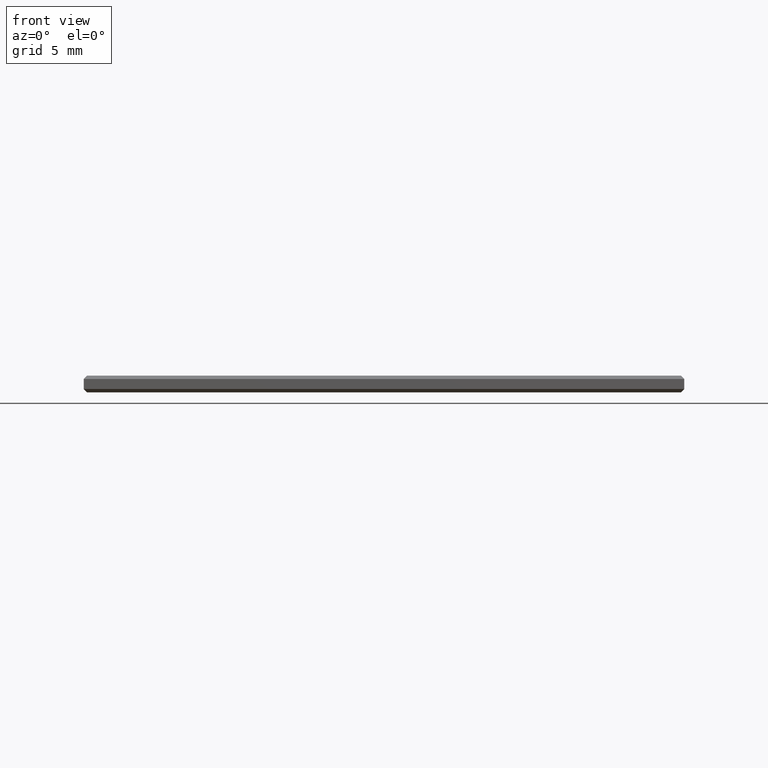
[diagram: clean part render]
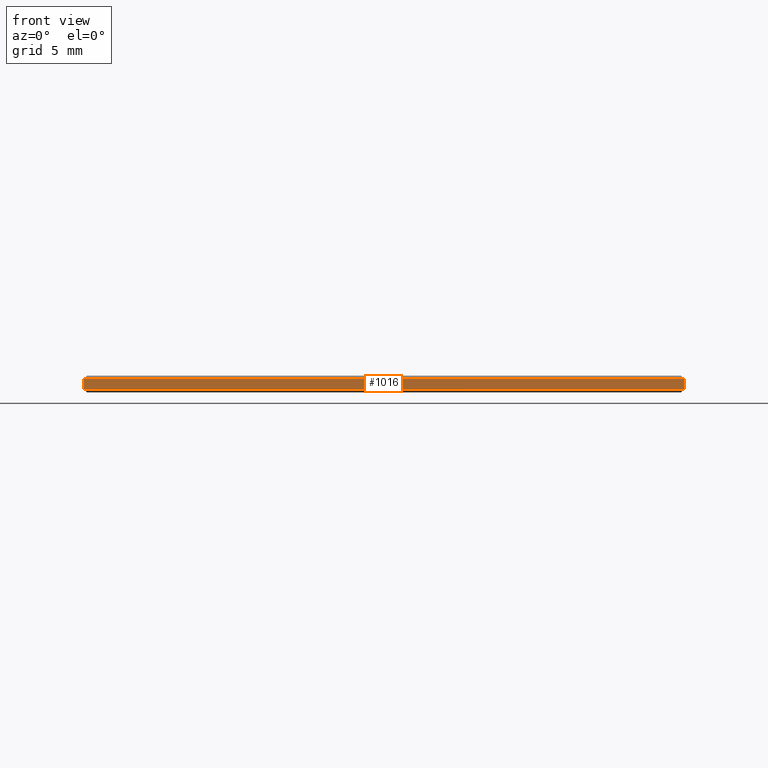
[diagram: same view with one face highlighted and labeled with its STEP entity id]
A machine part, front view. The second image highlights one B-rep face of the part: STEP entity #1016.
In plain terms, the highlighted planar face has unit normal (0, 1, 0).
Its self-contained STEP definition (entity closure, byte-faithful):
#1007 = VERTEX_POINT ( 'NONE', #3989 ) ;
#1010 = ORIENTED_EDGE ( 'NONE', *, *, #1046, .T. ) ;
#1013 = ORIENTED_EDGE ( 'NONE', *, *, #1017, .T. ) ;
#1015 = EDGE_CURVE ( 'NONE', #1034, #1022, #4008, .T. ) ;
#1016 = ADVANCED_FACE ( 'NONE', ( #4052 ), #4033, .F. ) ;
#1017 = EDGE_CURVE ( 'NONE', #1072, #1022, #4084, .T. ) ;
#1022 = VERTEX_POINT ( 'NONE', #4074 ) ;
#1034 = VERTEX_POINT ( 'NONE', #4066 ) ;
#1036 = ORIENTED_EDGE ( 'NONE', *, *, #1065, .T. ) ;
#1046 = EDGE_CURVE ( 'NONE', #1007, #1072, #4153, .T. ) ;
#1062 = ORIENTED_EDGE ( 'NONE', *, *, #1015, .F. ) ;
#1065 = EDGE_CURVE ( 'NONE', #1034, #1007, #4165, .T. ) ;
#1071 = EDGE_LOOP ( 'NONE', ( #1010, #1013, #1062, #1036 ) ) ;
#1072 = VERTEX_POINT ( 'NONE', #4159 ) ;
#3989 = CARTESIAN_POINT ( 'NONE',  ( -17.99999999999999600, -12.49999999999999800, 0.2999999999999942700 ) ) ;
#4008 = LINE ( 'NONE', #4036, #4035 ) ;
#4020 = CARTESIAN_POINT ( 'NONE',  ( -17.99999999999999600, -12.49999999999999800, 0.5000000000000000000 ) ) ;
#4033 = PLANE ( 'NONE',  #4054 ) ;
#4034 = DIRECTION ( 'NONE',  ( -0.0000000000000000000, -0.0000000000000000000, -1.000000000000000000 ) ) ;
#4035 = VECTOR ( 'NONE', #4034, 1000.000000000000000 ) ;
#4036 = CARTESIAN_POINT ( 'NONE',  ( 18.00000000000000400, -12.49999999999999800, 0.5000000000000000000 ) ) ;
#4052 = FACE_OUTER_BOUND ( 'NONE', #1071, .T. ) ;
#4054 = AXIS2_PLACEMENT_3D ( 'NONE', #4020, #4088, #4087 ) ;
#4066 = CARTESIAN_POINT ( 'NONE',  ( 18.00000000000000400, -12.49999999999999800, 0.2999999999999942700 ) ) ;
#4074 = CARTESIAN_POINT ( 'NONE',  ( 18.00000000000000400, -12.49999999999999800, -0.3000000000000012100 ) ) ;
#4081 = DIRECTION ( 'NONE',  ( 1.000000000000000000, 0.0000000000000000000, 0.0000000000000000000 ) ) ;
#4082 = VECTOR ( 'NONE', #4081, 1000.000000000000000 ) ;
#4083 = CARTESIAN_POINT ( 'NONE',  ( -17.99999999999999600, -12.49999999999999800, -0.3000000000000012100 ) ) ;
#4084 = LINE ( 'NONE', #4083, #4082 ) ;
#4087 = DIRECTION ( 'NONE',  ( 0.0000000000000000000, -0.0000000000000000000, 1.000000000000000000 ) ) ;
#4088 = DIRECTION ( 'NONE',  ( 0.0000000000000000000, 1.000000000000000000, 0.0000000000000000000 ) ) ;
#4150 = DIRECTION ( 'NONE',  ( -0.0000000000000000000, -0.0000000000000000000, -1.000000000000000000 ) ) ;
#4151 = VECTOR ( 'NONE', #4150, 1000.000000000000000 ) ;
#4152 = CARTESIAN_POINT ( 'NONE',  ( -17.99999999999999600, -12.49999999999999800, 0.5000000000000000000 ) ) ;
#4153 = LINE ( 'NONE', #4152, #4151 ) ;
#4159 = CARTESIAN_POINT ( 'NONE',  ( -17.99999999999999600, -12.49999999999999800, -0.3000000000000012100 ) ) ;
#4162 = DIRECTION ( 'NONE',  ( -1.000000000000000000, 0.0000000000000000000, 0.0000000000000000000 ) ) ;
#4163 = VECTOR ( 'NONE', #4162, 1000.000000000000000 ) ;
#4164 = CARTESIAN_POINT ( 'NONE',  ( -17.99999999999999600, -12.49999999999999800, 0.2999999999999942700 ) ) ;
#4165 = LINE ( 'NONE', #4164, #4163 ) ;